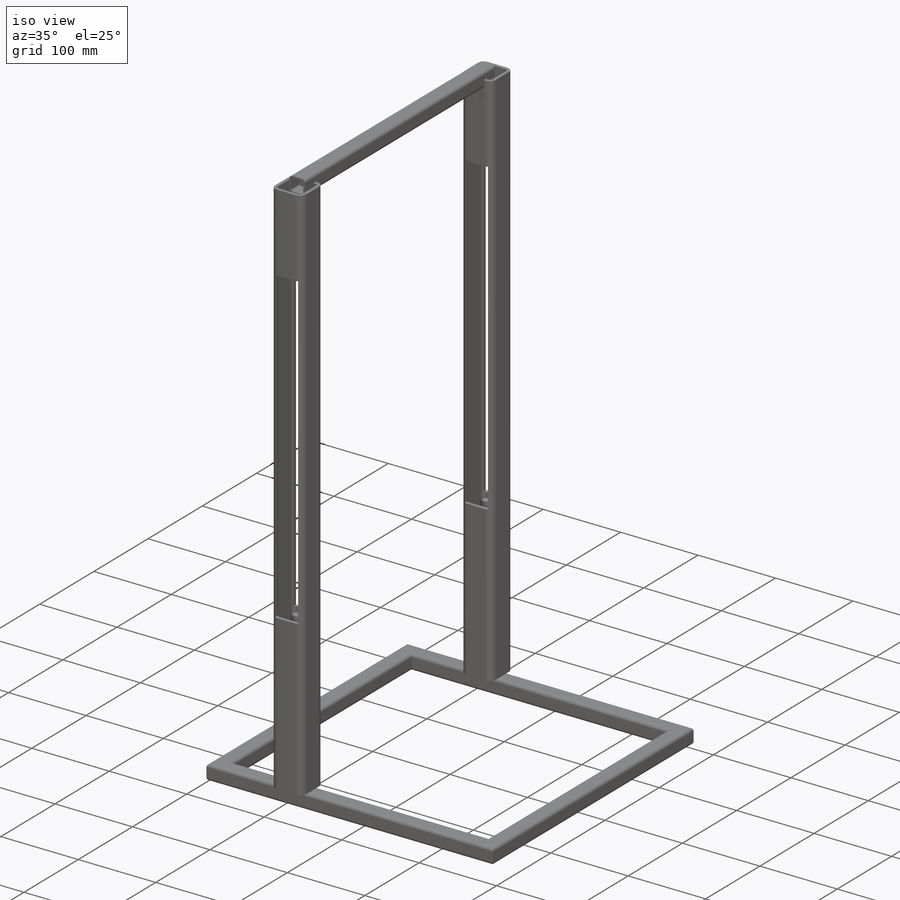
[diagram: iso view]
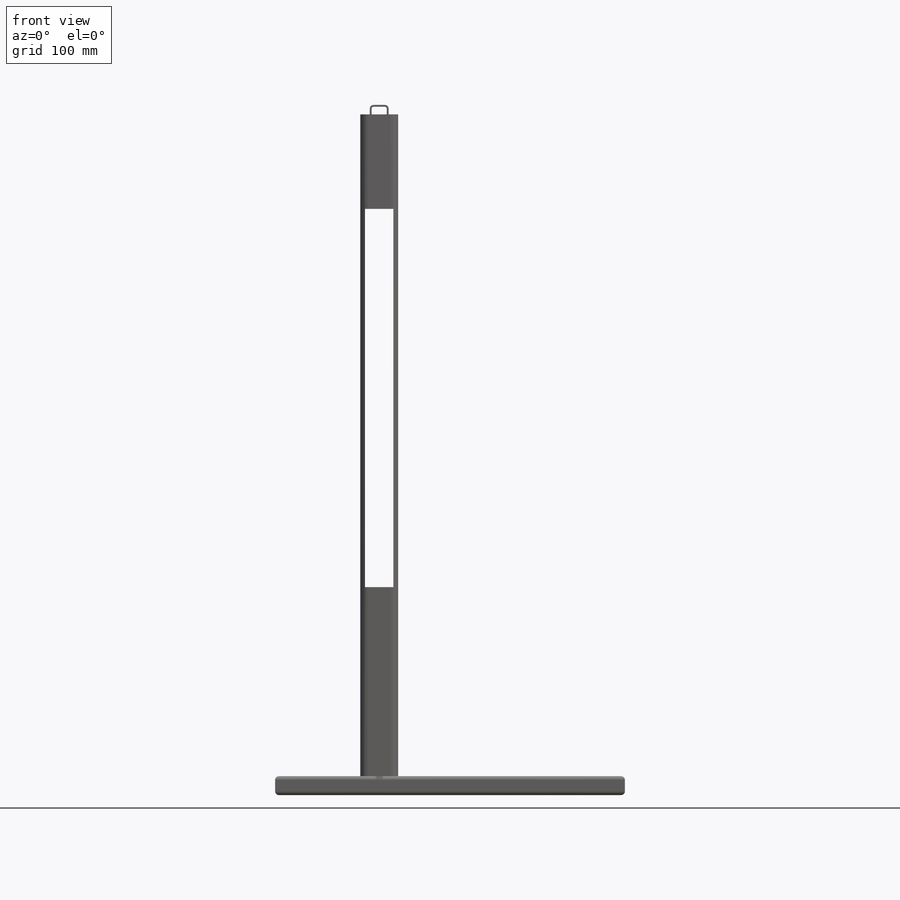
[diagram: front view]
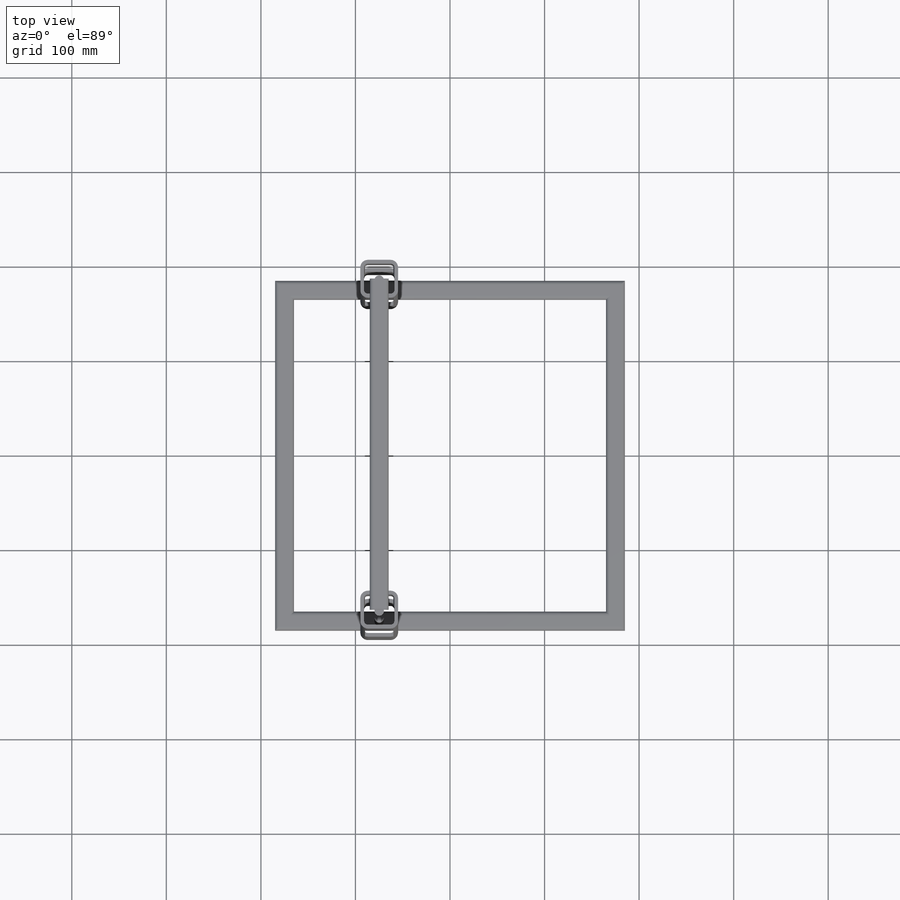
[diagram: top view]
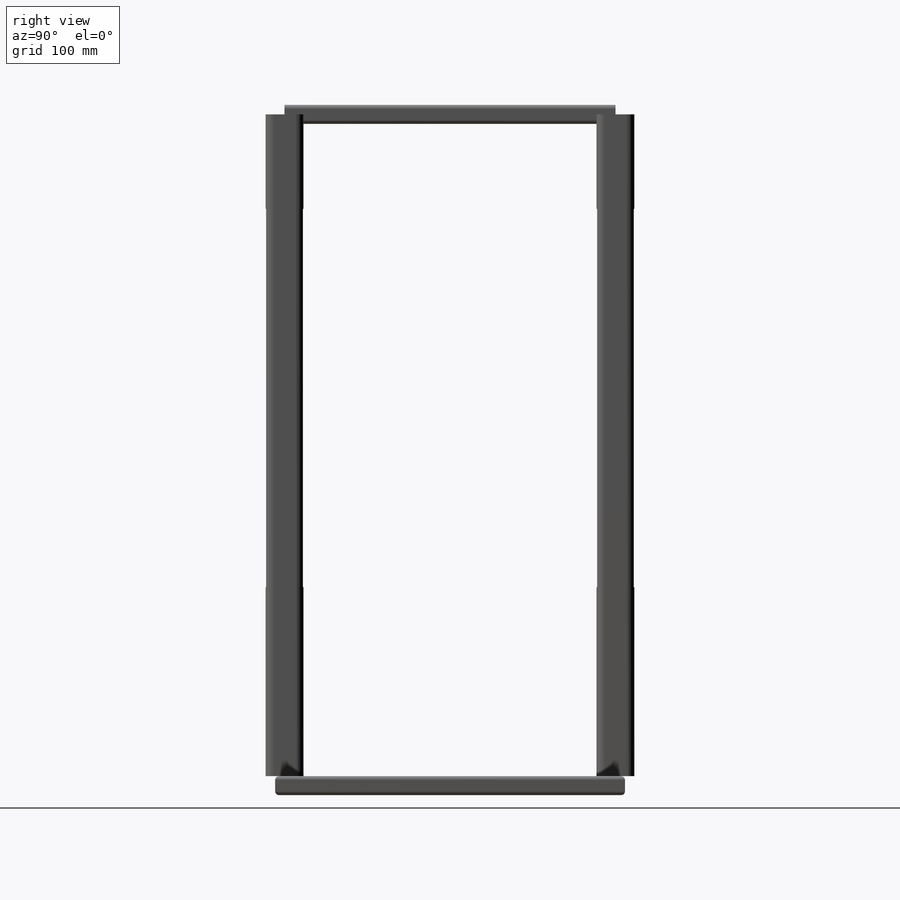
[diagram: right view]
SOLIDWORKS PART (.sldprt)
format: sldprt  version: not decoded by parser v0  size: 708,608 bytes
history: native  units: mm
features: sketch x7, plane x3, material x1, extrude x1, cut_extrude x1 (+12 scaffold rows collapsed)
feature tree (25):
  scaffold x12  (default folders/planes/origin — collapsed)
  material  "Material <not specified>"
  sketch  "Sketch1"  dims[D1=350.0mm D2=350.0mm D3=100.0mm]
  plane  "Plane1"
  sketch  "Sketch11"  dims[c1.D1=6.35mm c1.D2=6.35mm c1.D3=6.35mm c1.D4=6.35mm c1.D5=6.35mm c1.D6=6.35mm c1.D7=6.35mm c1.D8=6.35mm c2.D1=6.604mm c2.D2=6.604mm c2.D3=6.604mm c2.D4=6.604mm c3.D1=4.0mm c3.Thickness=2.0mm c3.D4=12.9032mm c3.D5=12.9286mm c3.V_leg=20.0mm c3.H_leg=20.0mm c4.D4=50.3428mm c4.D5=50.8508mm c5.D4=~41.274964mm c5.D5=~41.274964mm]
  sketch  "Sketch14"  dims[D1=350.0mm]
  extrude  "Boss-Extrude1"  Depth=615mm
  sketch  "3DSketch2"  dims[D1=700.0mm D2=700.0mm D3=350.0mm]
  plane  "Plane4"
  sketch  "Sketch17"  dims[c1.D1=6.35mm c1.D2=6.35mm c1.D3=6.35mm c1.D4=6.35mm c1.D5=6.35mm c1.D6=6.35mm c1.D7=6.35mm c1.D8=6.35mm c2.D1=6.604mm c2.D2=6.604mm c2.D3=6.604mm c2.D4=6.604mm c3.D1=8.0mm c3.Thickness=4.0mm c3.D4=12.9032mm c3.D5=12.9286mm c3.V_leg=40.0mm c3.H_leg=20.0mm c4.D4=50.3428mm c4.D5=50.8508mm c5.D4=~41.274964mm c5.D5=~41.274964mm]
  sketch  "Sketch18"  dims[D1=200.0mm D2=400.0mm D3=30.0mm D4=3.0mm]
  cut_extrude  "Cut-Extrude1"  Depth=600mm
  plane  "Plane5"
  sketch  "Sketch110"  dims[c1.D1=6.35mm c1.D2=6.35mm c1.D3=6.35mm c1.D4=6.35mm c1.D5=6.35mm c1.D6=6.35mm c1.D7=6.35mm c1.D8=6.35mm c2.D1=6.604mm c2.D2=6.604mm c2.D3=6.604mm c2.D4=6.604mm c3.D1=4.0mm c3.Thickness=2.0mm c3.D4=12.9032mm c3.D5=12.9286mm c3.V_leg=20.0mm c3.H_leg=20.0mm c4.D4=50.3428mm c4.D5=50.8508mm c5.D4=~41.274964mm c5.D5=~41.274964mm]
decode coverage: 9 of 9 modeling features carry decoded parameters
note: ~ marks probable driven/reference dimensions
note: suppression state not decoded; provenance and decode notes live in map.json
